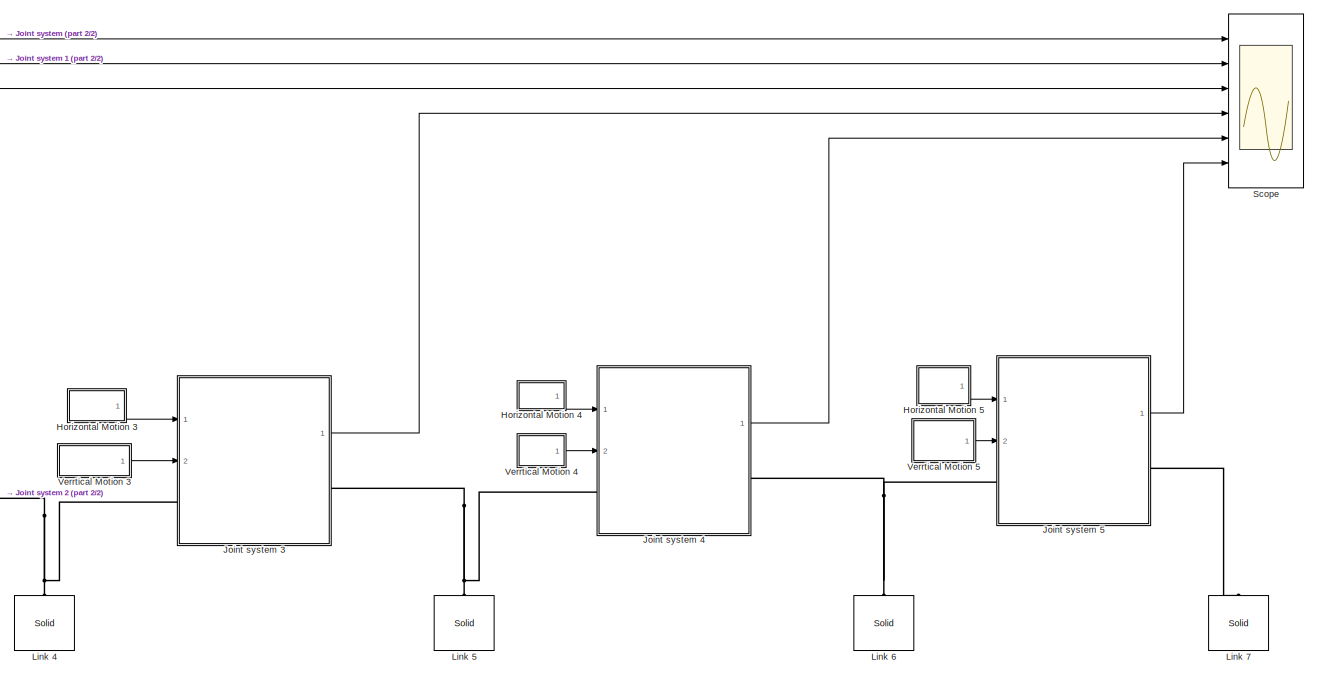
[diagram: root canvas - part 1/2, right side, full height]
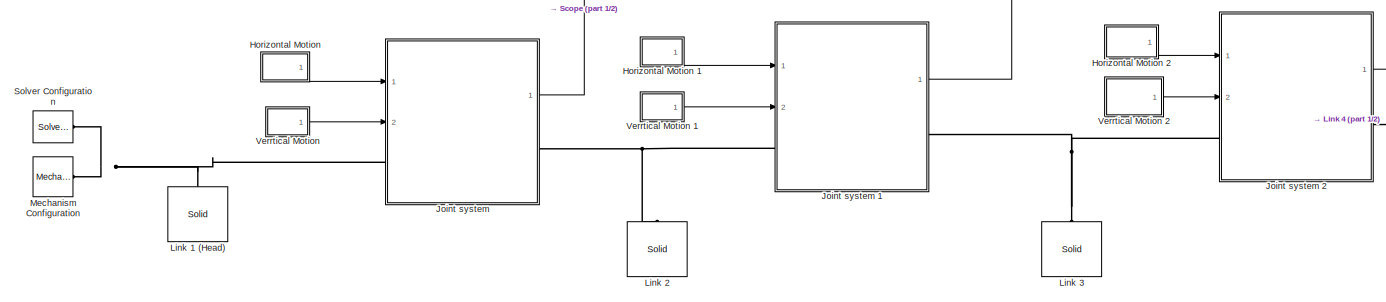
[diagram: root canvas - part 2/2, bottom left region]
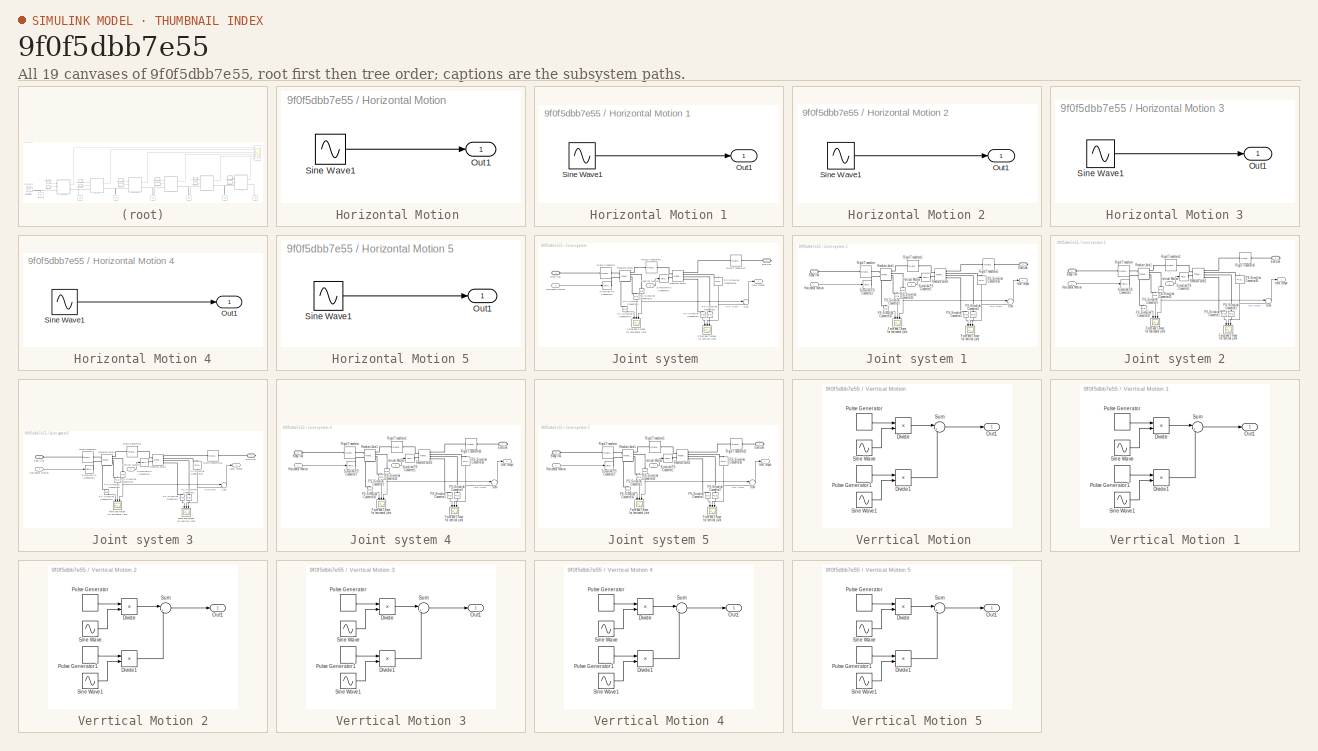
[diagram: thumbnail index - all 19 canvases of the model, root first then tree order]
MODEL slx_9f0f5dbb7e55
KIND model
CONFIG AbsTol = auto
CONFIG EnableMultiTasking = on
CONFIG FixedStep = auto
CONFIG MaxStep = auto
CONFIG MinStep = auto
CONFIG PreLoadFcn = robotParameters;
CONFIG RelTol = 1e-3
CONFIG SampleTimeConstraint = Unconstrained
CONFIG Solver = VariableStepAuto
CONFIG SolverName = VariableStepAuto
CONFIG StartTime = 0.0
CONFIG StopTime = 20
BLOCK [SubSystem] Horizontal Motion 
  Ports = [0, 1]
  RequestExecContextInheritance = off
BLOCK [Outport] Horizontal Motion /Out1
  IconDisplay = Port number
BLOCK [Sin] Horizontal Motion /Sine Wave1
  Amplitude = 15
  Frequency = 5
  Phase = 90
  Ports = [0, 1]
BLOCK [SubSystem] Horizontal Motion 1
  Ports = [0, 1]
  RequestExecContextInheritance = off
BLOCK [Outport] Horizontal Motion 1/Out1
  IconDisplay = Port number
BLOCK [Sin] Horizontal Motion 1/Sine Wave1
  Amplitude = 15
  Frequency = 5
  Phase = 90 * 2
  Ports = [0, 1]
  SampleTime = 0
BLOCK [SubSystem] Horizontal Motion 2
  Ports = [0, 1]
  RequestExecContextInheritance = off
BLOCK [Outport] Horizontal Motion 2/Out1
  IconDisplay = Port number
BLOCK [Sin] Horizontal Motion 2/Sine Wave1
  Amplitude = 15
  Frequency = 5
  Phase = 90 * 3
  Ports = [0, 1]
  SampleTime = 0
BLOCK [SubSystem] Horizontal Motion 3
  Ports = [0, 1]
  RequestExecContextInheritance = off
BLOCK [Outport] Horizontal Motion 3/Out1
  IconDisplay = Port number
BLOCK [Sin] Horizontal Motion 3/Sine Wave1
  Amplitude = 15
  Frequency = 5
  Phase = 90 * 3
  Ports = [0, 1]
  SampleTime = 0
BLOCK [SubSystem] Horizontal Motion 4
  Ports = [0, 1]
  RequestExecContextInheritance = off
BLOCK [Outport] Horizontal Motion 4/Out1
  IconDisplay = Port number
BLOCK [Sin] Horizontal Motion 4/Sine Wave1
  Amplitude = 15
  Frequency = 5
  Phase = 90 * 4
  Ports = [0, 1]
  SampleTime = 0
BLOCK [SubSystem] Horizontal Motion 5
  Ports = [0, 1]
  RequestExecContextInheritance = off
BLOCK [Outport] Horizontal Motion 5/Out1
  IconDisplay = Port number
BLOCK [Sin] Horizontal Motion 5/Sine Wave1
  Amplitude = 15
  Frequency = 5
  Phase = 90 * 5
  Ports = [0, 1]
  SampleTime = 0
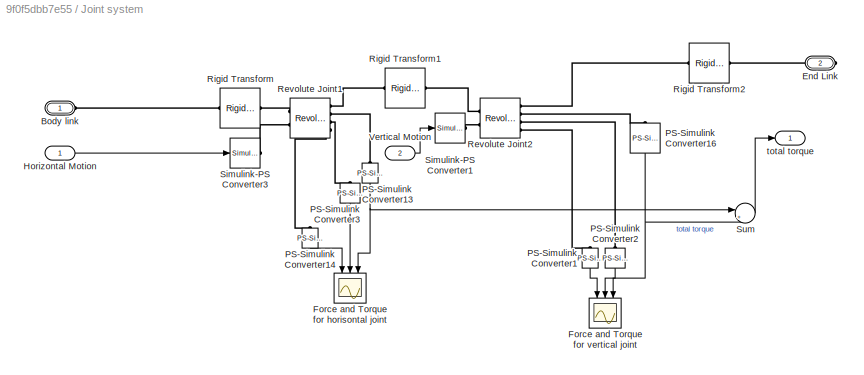
BLOCK [SubSystem] Joint system 
  Ports = [2, 1, 0, 0, 0, 1, 1]
  RequestExecContextInheritance = off
BLOCK [PMIOPort] Joint system /Body link
  Side = Left
BLOCK [PMIOPort] Joint system /End Link 
  Port = 2
  Side = Right
BLOCK [Scope] Joint system /Force and Torque for horisontal joint
  Floating = off
  NumInputPorts = 3
  Ports = [3]
  ScopeSpecificationString = Simulink.scopes.TimeScopeBlockCfg('CurrentConfiguration', extmgr.ConfigurationSet(extmgr.Configuration('Core','General UI',true),extmgr.Configuration('Core','Source UI',true),extmgr.Configuration('Sources','WiredSimulink',true,'DataLoggingLimitDataPoints',true,'DataLoggingSaveFormat','Array','DataLoggingDecimation','1','DataLoggingDecimateData',true,'DataLoggingVariableName','ScopeData1'),extmgr.C...<+3206ch>  <repeated x12 — deduplicated; at blocks: Force and Torque for horisontal joint, Force and Torque for vertical joint>
BLOCK [Scope] Joint system /Force and Torque for vertical joint
  Floating = off
  NumInputPorts = 3
  Ports = [3]
BLOCK [Inport] Joint system /Horizontal Motion
  IconDisplay = Port number
BLOCK [Reference] Joint system /PS-Simulink Converter1  REF=nesl_utility/PS-Simulink
Converter
  Ports = [0, 1, 0, 0, 0, 1]
  SourceBlock = nesl_utility/PS-Simulink\nConverter
  SourceProductBaseCode = SS
  SourceProductName = Simscape
  SourceType = PS-Simulink\nConverter
BLOCK [Reference] Joint system /PS-Simulink Converter13  REF=nesl_utility/PS-Simulink
Converter
  Ports = [0, 1, 0, 0, 0, 1]
  SourceBlock = nesl_utility/PS-Simulink\nConverter
  SourceProductBaseCode = SS
  SourceProductName = Simscape
  SourceType = PS-Simulink\nConverter
BLOCK [Reference] Joint system /PS-Simulink Converter14  REF=nesl_utility/PS-Simulink
Converter
  Ports = [0, 1, 0, 0, 0, 1]
  SourceBlock = nesl_utility/PS-Simulink\nConverter
  SourceProductBaseCode = SS
  SourceProductName = Simscape
  SourceType = PS-Simulink\nConverter
BLOCK [Reference] Joint system /PS-Simulink Converter16  REF=nesl_utility/PS-Simulink
Converter
  Ports = [0, 1, 0, 0, 0, 1]
  SourceBlock = nesl_utility/PS-Simulink\nConverter
  SourceProductBaseCode = SS
  SourceProductName = Simscape
  SourceType = PS-Simulink\nConverter
BLOCK [Reference] Joint system /PS-Simulink Converter2  REF=nesl_utility/PS-Simulink
Converter
  Ports = [0, 1, 0, 0, 0, 1]
  SourceBlock = nesl_utility/PS-Simulink\nConverter
  SourceProductBaseCode = SS
  SourceProductName = Simscape
  SourceType = PS-Simulink\nConverter
BLOCK [Reference] Joint system /PS-Simulink Converter3  REF=nesl_utility/PS-Simulink
Converter
  Ports = [0, 1, 0, 0, 0, 1]
  SourceBlock = nesl_utility/PS-Simulink\nConverter
  SourceProductBaseCode = SS
  SourceProductName = Simscape
  SourceType = PS-Simulink\nConverter
BLOCK [Reference] Joint system /Revolute Joint1  REF=sm_lib/Joints/Revolute Joint
  Ports = [0, 0, 0, 0, 0, 2, 4]
  SourceBlock = sm_lib/Joints/Revolute Joint
  SourceProductBaseCode = MS
  SourceProductName = Simscape Multibody
  SourceType = Revolute Joint
BLOCK [Reference] Joint system /Revolute Joint2  REF=sm_lib/Joints/Revolute Joint
  Ports = [0, 0, 0, 0, 0, 2, 4]
  SourceBlock = sm_lib/Joints/Revolute Joint
  SourceProductBaseCode = MS
  SourceProductName = Simscape Multibody
  SourceType = Revolute Joint
BLOCK [Reference] Joint system /Rigid Transform  REF=sm_lib/Frames and
Transforms/Rigid
Transform
  Ports = [0, 0, 0, 0, 0, 1, 1]
  SourceBlock = sm_lib/Frames and\nTransforms/Rigid\nTransform
  SourceProductBaseCode = MS
  SourceProductName = Simscape Multibody
  SourceType = Rigid\nTransform
BLOCK [Reference] Joint system /Rigid Transform1  REF=sm_lib/Frames and
Transforms/Rigid
Transform
  Ports = [0, 0, 0, 0, 0, 1, 1]
  SourceBlock = sm_lib/Frames and\nTransforms/Rigid\nTransform
  SourceProductBaseCode = MS
  SourceProductName = Simscape Multibody
  SourceType = Rigid\nTransform
BLOCK [Reference] Joint system /Rigid Transform2  REF=sm_lib/Frames and
Transforms/Rigid
Transform
  Ports = [0, 0, 0, 0, 0, 1, 1]
  SourceBlock = sm_lib/Frames and\nTransforms/Rigid\nTransform
  SourceProductBaseCode = MS
  SourceProductName = Simscape Multibody
  SourceType = Rigid\nTransform
BLOCK [Reference] Joint system /Simulink-PS Converter1  REF=nesl_utility/Simulink-PS
Converter
  Ports = [1, 0, 0, 0, 0, 0, 1]
  SourceBlock = nesl_utility/Simulink-PS\nConverter
  SourceProductBaseCode = SS
  SourceProductName = Simscape
  SourceType = Simulink-PS\nConverter
BLOCK [Reference] Joint system /Simulink-PS Converter3  REF=nesl_utility/Simulink-PS
Converter
  Ports = [1, 0, 0, 0, 0, 0, 1]
  SourceBlock = nesl_utility/Simulink-PS\nConverter
  SourceProductBaseCode = SS
  SourceProductName = Simscape
  SourceType = Simulink-PS\nConverter
BLOCK [Sum] Joint system /Sum
  IconShape = round
  InputSameDT = off
  Inputs = |++
  OutDataTypeStr = Inherit: Inherit via internal rule
  Ports = [2, 1]
  SaturateOnIntegerOverflow = off
BLOCK [Inport] Joint system /Vertical Motion
  IconDisplay = Port number
  Port = 2
BLOCK [Outport] Joint system /total torque
  IconDisplay = Port number
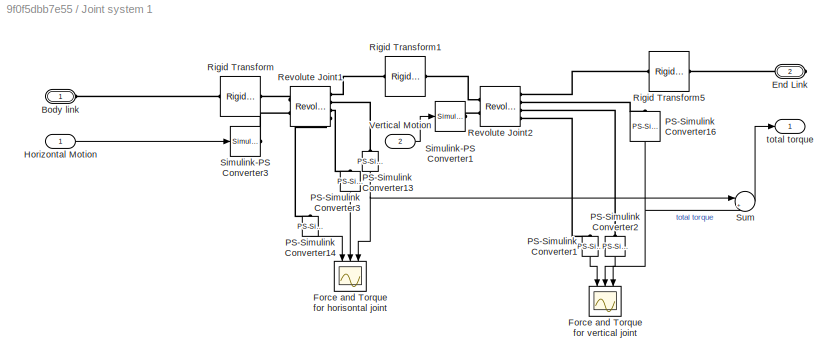
BLOCK [SubSystem] Joint system 1
  Ports = [2, 1, 0, 0, 0, 1, 1]
  RequestExecContextInheritance = off
BLOCK [PMIOPort] Joint system 1/Body link
  Side = Left
BLOCK [PMIOPort] Joint system 1/End Link 
  Port = 2
  Side = Right
BLOCK [Scope] Joint system 1/Force and Torque for horisontal joint
  Floating = off
  NumInputPorts = 3
  Ports = [3]
BLOCK [Scope] Joint system 1/Force and Torque for vertical joint
  Floating = off
  NumInputPorts = 3
  Ports = [3]
BLOCK [Inport] Joint system 1/Horizontal Motion
  IconDisplay = Port number
BLOCK [Reference] Joint system 1/PS-Simulink Converter1  REF=nesl_utility/PS-Simulink
Converter
  Ports = [0, 1, 0, 0, 0, 1]
  SourceBlock = nesl_utility/PS-Simulink\nConverter
  SourceProductBaseCode = SS
  SourceProductName = Simscape
  SourceType = PS-Simulink\nConverter
BLOCK [Reference] Joint system 1/PS-Simulink Converter13  REF=nesl_utility/PS-Simulink
Converter
  Ports = [0, 1, 0, 0, 0, 1]
  SourceBlock = nesl_utility/PS-Simulink\nConverter
  SourceProductBaseCode = SS
  SourceProductName = Simscape
  SourceType = PS-Simulink\nConverter
BLOCK [Reference] Joint system 1/PS-Simulink Converter14  REF=nesl_utility/PS-Simulink
Converter
  Ports = [0, 1, 0, 0, 0, 1]
  SourceBlock = nesl_utility/PS-Simulink\nConverter
  SourceProductBaseCode = SS
  SourceProductName = Simscape
  SourceType = PS-Simulink\nConverter
BLOCK [Reference] Joint system 1/PS-Simulink Converter16  REF=nesl_utility/PS-Simulink
Converter
  Ports = [0, 1, 0, 0, 0, 1]
  SourceBlock = nesl_utility/PS-Simulink\nConverter
  SourceProductBaseCode = SS
  SourceProductName = Simscape
  SourceType = PS-Simulink\nConverter
BLOCK [Reference] Joint system 1/PS-Simulink Converter2  REF=nesl_utility/PS-Simulink
Converter
  Ports = [0, 1, 0, 0, 0, 1]
  SourceBlock = nesl_utility/PS-Simulink\nConverter
  SourceProductBaseCode = SS
  SourceProductName = Simscape
  SourceType = PS-Simulink\nConverter
BLOCK [Reference] Joint system 1/PS-Simulink Converter3  REF=nesl_utility/PS-Simulink
Converter
  Ports = [0, 1, 0, 0, 0, 1]
  SourceBlock = nesl_utility/PS-Simulink\nConverter
  SourceProductBaseCode = SS
  SourceProductName = Simscape
  SourceType = PS-Simulink\nConverter
BLOCK [Reference] Joint system 1/Revolute Joint1  REF=sm_lib/Joints/Revolute Joint
  Ports = [0, 0, 0, 0, 0, 2, 4]
  SourceBlock = sm_lib/Joints/Revolute Joint
  SourceProductBaseCode = MS
  SourceProductName = Simscape Multibody
  SourceType = Revolute Joint
BLOCK [Reference] Joint system 1/Revolute Joint2  REF=sm_lib/Joints/Revolute Joint
  Ports = [0, 0, 0, 0, 0, 2, 4]
  SourceBlock = sm_lib/Joints/Revolute Joint
  SourceProductBaseCode = MS
  SourceProductName = Simscape Multibody
  SourceType = Revolute Joint
BLOCK [Reference] Joint system 1/Rigid Transform  REF=sm_lib/Frames and
Transforms/Rigid
Transform
  Ports = [0, 0, 0, 0, 0, 1, 1]
  SourceBlock = sm_lib/Frames and\nTransforms/Rigid\nTransform
  SourceProductBaseCode = MS
  SourceProductName = Simscape Multibody
  SourceType = Rigid\nTransform
BLOCK [Reference] Joint system 1/Rigid Transform1  REF=sm_lib/Frames and
Transforms/Rigid
Transform
  Ports = [0, 0, 0, 0, 0, 1, 1]
  SourceBlock = sm_lib/Frames and\nTransforms/Rigid\nTransform
  SourceProductBaseCode = MS
  SourceProductName = Simscape Multibody
  SourceType = Rigid\nTransform
BLOCK [Reference] Joint system 1/Rigid Transform5  REF=sm_lib/Frames and
Transforms/Rigid
Transform
  Ports = [0, 0, 0, 0, 0, 1, 1]
  SourceBlock = sm_lib/Frames and\nTransforms/Rigid\nTransform
  SourceProductBaseCode = MS
  SourceProductName = Simscape Multibody
  SourceType = Rigid\nTransform
BLOCK [Reference] Joint system 1/Simulink-PS Converter1  REF=nesl_utility/Simulink-PS
Converter
  Ports = [1, 0, 0, 0, 0, 0, 1]
  SourceBlock = nesl_utility/Simulink-PS\nConverter
  SourceProductBaseCode = SS
  SourceProductName = Simscape
  SourceType = Simulink-PS\nConverter
BLOCK [Reference] Joint system 1/Simulink-PS Converter3  REF=nesl_utility/Simulink-PS
Converter
  Ports = [1, 0, 0, 0, 0, 0, 1]
  SourceBlock = nesl_utility/Simulink-PS\nConverter
  SourceProductBaseCode = SS
  SourceProductName = Simscape
  SourceType = Simulink-PS\nConverter
BLOCK [Sum] Joint system 1/Sum
  IconShape = round
  InputSameDT = off
  Inputs = |++
  OutDataTypeStr = Inherit: Inherit via internal rule
  Ports = [2, 1]
  SaturateOnIntegerOverflow = off
BLOCK [Inport] Joint system 1/Vertical Motion
  IconDisplay = Port number
  Port = 2
BLOCK [Outport] Joint system 1/total torque
  IconDisplay = Port number
BLOCK [SubSystem] Joint system 2
  Ports = [2, 1, 0, 0, 0, 1, 1]
  RequestExecContextInheritance = off
BLOCK [PMIOPort] Joint system 2/Body link
  Side = Left
BLOCK [PMIOPort] Joint system 2/End Link 
  Port = 2
  Side = Right
BLOCK [Scope] Joint system 2/Force and Torque for horisontal joint
  Floating = off
  NumInputPorts = 3
  Ports = [3]
BLOCK [Scope] Joint system 2/Force and Torque for vertical joint
  Floating = off
  NumInputPorts = 3
  Ports = [3]
BLOCK [Inport] Joint system 2/Horizontal Motion
  IconDisplay = Port number
BLOCK [Reference] Joint system 2/PS-Simulink Converter1  REF=nesl_utility/PS-Simulink
Converter
  Ports = [0, 1, 0, 0, 0, 1]
  SourceBlock = nesl_utility/PS-Simulink\nConverter
  SourceProductBaseCode = SS
  SourceProductName = Simscape
  SourceType = PS-Simulink\nConverter
BLOCK [Reference] Joint system 2/PS-Simulink Converter13  REF=nesl_utility/PS-Simulink
Converter
  Ports = [0, 1, 0, 0, 0, 1]
  SourceBlock = nesl_utility/PS-Simulink\nConverter
  SourceProductBaseCode = SS
  SourceProductName = Simscape
  SourceType = PS-Simulink\nConverter
BLOCK [Reference] Joint system 2/PS-Simulink Converter14  REF=nesl_utility/PS-Simulink
Converter
  Ports = [0, 1, 0, 0, 0, 1]
  SourceBlock = nesl_utility/PS-Simulink\nConverter
  SourceProductBaseCode = SS
  SourceProductName = Simscape
  SourceType = PS-Simulink\nConverter
BLOCK [Reference] Joint system 2/PS-Simulink Converter16  REF=nesl_utility/PS-Simulink
Converter
  Ports = [0, 1, 0, 0, 0, 1]
  SourceBlock = nesl_utility/PS-Simulink\nConverter
  SourceProductBaseCode = SS
  SourceProductName = Simscape
  SourceType = PS-Simulink\nConverter
BLOCK [Reference] Joint system 2/PS-Simulink Converter2  REF=nesl_utility/PS-Simulink
Converter
  Ports = [0, 1, 0, 0, 0, 1]
  SourceBlock = nesl_utility/PS-Simulink\nConverter
  SourceProductBaseCode = SS
  SourceProductName = Simscape
  SourceType = PS-Simulink\nConverter
BLOCK [Reference] Joint system 2/PS-Simulink Converter3  REF=nesl_utility/PS-Simulink
Converter
  Ports = [0, 1, 0, 0, 0, 1]
  SourceBlock = nesl_utility/PS-Simulink\nConverter
  SourceProductBaseCode = SS
  SourceProductName = Simscape
  SourceType = PS-Simulink\nConverter
BLOCK [Reference] Joint system 2/Revolute Joint1  REF=sm_lib/Joints/Revolute Joint
  Ports = [0, 0, 0, 0, 0, 2, 4]
  SourceBlock = sm_lib/Joints/Revolute Joint
  SourceProductBaseCode = MS
  SourceProductName = Simscape Multibody
  SourceType = Revolute Joint
BLOCK [Reference] Joint system 2/Revolute Joint2  REF=sm_lib/Joints/Revolute Joint
  Ports = [0, 0, 0, 0, 0, 2, 4]
  SourceBlock = sm_lib/Joints/Revolute Joint
  SourceProductBaseCode = MS
  SourceProductName = Simscape Multibody
  SourceType = Revolute Joint
BLOCK [Reference] Joint system 2/Rigid Transform  REF=sm_lib/Frames and
Transforms/Rigid
Transform
  Ports = [0, 0, 0, 0, 0, 1, 1]
  SourceBlock = sm_lib/Frames and\nTransforms/Rigid\nTransform
  SourceProductBaseCode = MS
  SourceProductName = Simscape Multibody
  SourceType = Rigid\nTransform
BLOCK [Reference] Joint system 2/Rigid Transform1  REF=sm_lib/Frames and
Transforms/Rigid
Transform
  Ports = [0, 0, 0, 0, 0, 1, 1]
  SourceBlock = sm_lib/Frames and\nTransforms/Rigid\nTransform
  SourceProductBaseCode = MS
  SourceProductName = Simscape Multibody
  SourceType = Rigid\nTransform
BLOCK [Reference] Joint system 2/Rigid Transform8  REF=sm_lib/Frames and
Transforms/Rigid
Transform
  Ports = [0, 0, 0, 0, 0, 1, 1]
  SourceBlock = sm_lib/Frames and\nTransforms/Rigid\nTransform
  SourceProductBaseCode = MS
  SourceProductName = Simscape Multibody
  SourceType = Rigid\nTransform
BLOCK [Reference] Joint system 2/Simulink-PS Converter1  REF=nesl_utility/Simulink-PS
Converter
  Ports = [1, 0, 0, 0, 0, 0, 1]
  SourceBlock = nesl_utility/Simulink-PS\nConverter
  SourceProductBaseCode = SS
  SourceProductName = Simscape
  SourceType = Simulink-PS\nConverter
BLOCK [Reference] Joint system 2/Simulink-PS Converter3  REF=nesl_utility/Simulink-PS
Converter
  Ports = [1, 0, 0, 0, 0, 0, 1]
  SourceBlock = nesl_utility/Simulink-PS\nConverter
  SourceProductBaseCode = SS
  SourceProductName = Simscape
  SourceType = Simulink-PS\nConverter
BLOCK [Sum] Joint system 2/Sum
  IconShape = round
  InputSameDT = off
  Inputs = |++
  OutDataTypeStr = Inherit: Inherit via internal rule
  Ports = [2, 1]
  SaturateOnIntegerOverflow = off
BLOCK [Inport] Joint system 2/Vertical Motion
  IconDisplay = Port number
  Port = 2
BLOCK [Outport] Joint system 2/total torque
  IconDisplay = Port number
BLOCK [SubSystem] Joint system 3
  Ports = [2, 1, 0, 0, 0, 1, 1]
  RequestExecContextInheritance = off
BLOCK [PMIOPort] Joint system 3/Body link
  Side = Left
BLOCK [PMIOPort] Joint system 3/End Link 
  Port = 2
  Side = Right
BLOCK [Scope] Joint system 3/Force and Torque for horisontal joint
  Floating = off
  NumInputPorts = 3
  Ports = [3]
BLOCK [Scope] Joint system 3/Force and Torque for vertical joint
  Floating = off
  NumInputPorts = 3
  Ports = [3]
BLOCK [Inport] Joint system 3/Horizontal Motion
  IconDisplay = Port number
BLOCK [Reference] Joint system 3/PS-Simulink Converter1  REF=nesl_utility/PS-Simulink
Converter
  Ports = [0, 1, 0, 0, 0, 1]
  SourceBlock = nesl_utility/PS-Simulink\nConverter
  SourceProductBaseCode = SS
  SourceProductName = Simscape
  SourceType = PS-Simulink\nConverter
BLOCK [Reference] Joint system 3/PS-Simulink Converter13  REF=nesl_utility/PS-Simulink
Converter
  Ports = [0, 1, 0, 0, 0, 1]
  SourceBlock = nesl_utility/PS-Simulink\nConverter
  SourceProductBaseCode = SS
  SourceProductName = Simscape
  SourceType = PS-Simulink\nConverter
BLOCK [Reference] Joint system 3/PS-Simulink Converter14  REF=nesl_utility/PS-Simulink
Converter
  Ports = [0, 1, 0, 0, 0, 1]
  SourceBlock = nesl_utility/PS-Simulink\nConverter
  SourceProductBaseCode = SS
  SourceProductName = Simscape
  SourceType = PS-Simulink\nConverter
BLOCK [Reference] Joint system 3/PS-Simulink Converter16  REF=nesl_utility/PS-Simulink
Converter
  Ports = [0, 1, 0, 0, 0, 1]
  SourceBlock = nesl_utility/PS-Simulink\nConverter
  SourceProductBaseCode = SS
  SourceProductName = Simscape
  SourceType = PS-Simulink\nConverter
BLOCK [Reference] Joint system 3/PS-Simulink Converter2  REF=nesl_utility/PS-Simulink
Converter
  Ports = [0, 1, 0, 0, 0, 1]
  SourceBlock = nesl_utility/PS-Simulink\nConverter
  SourceProductBaseCode = SS
  SourceProductName = Simscape
  SourceType = PS-Simulink\nConverter
BLOCK [Reference] Joint system 3/PS-Simulink Converter3  REF=nesl_utility/PS-Simulink
Converter
  Ports = [0, 1, 0, 0, 0, 1]
  SourceBlock = nesl_utility/PS-Simulink\nConverter
  SourceProductBaseCode = SS
  SourceProductName = Simscape
  SourceType = PS-Simulink\nConverter
BLOCK [Reference] Joint system 3/Revolute Joint1  REF=sm_lib/Joints/Revolute Joint
  Ports = [0, 0, 0, 0, 0, 2, 4]
  SourceBlock = sm_lib/Joints/Revolute Joint
  SourceProductBaseCode = MS
  SourceProductName = Simscape Multibody
  SourceType = Revolute Joint
BLOCK [Reference] Joint system 3/Revolute Joint2  REF=sm_lib/Joints/Revolute Joint
  Ports = [0, 0, 0, 0, 0, 2, 4]
  SourceBlock = sm_lib/Joints/Revolute Joint
  SourceProductBaseCode = MS
  SourceProductName = Simscape Multibody
  SourceType = Revolute Joint
BLOCK [Reference] Joint system 3/Rigid Transform  REF=sm_lib/Frames and
Transforms/Rigid
Transform
  Ports = [0, 0, 0, 0, 0, 1, 1]
  SourceBlock = sm_lib/Frames and\nTransforms/Rigid\nTransform
  SourceProductBaseCode = MS
  SourceProductName = Simscape Multibody
  SourceType = Rigid\nTransform
BLOCK [Reference] Joint system 3/Rigid Transform1  REF=sm_lib/Frames and
Transforms/Rigid
Transform
  Ports = [0, 0, 0, 0, 0, 1, 1]
  SourceBlock = sm_lib/Frames and\nTransforms/Rigid\nTransform
  SourceProductBaseCode = MS
  SourceProductName = Simscape Multibody
  SourceType = Rigid\nTransform
BLOCK [Reference] Joint system 3/Rigid Transform11  REF=sm_lib/Frames and
Transforms/Rigid
Transform
  Ports = [0, 0, 0, 0, 0, 1, 1]
  SourceBlock = sm_lib/Frames and\nTransforms/Rigid\nTransform
  SourceProductBaseCode = MS
  SourceProductName = Simscape Multibody
  SourceType = Rigid\nTransform
BLOCK [Reference] Joint system 3/Simulink-PS Converter1  REF=nesl_utility/Simulink-PS
Converter
  Ports = [1, 0, 0, 0, 0, 0, 1]
  SourceBlock = nesl_utility/Simulink-PS\nConverter
  SourceProductBaseCode = SS
  SourceProductName = Simscape
  SourceType = Simulink-PS\nConverter
BLOCK [Reference] Joint system 3/Simulink-PS Converter3  REF=nesl_utility/Simulink-PS
Converter
  Ports = [1, 0, 0, 0, 0, 0, 1]
  SourceBlock = nesl_utility/Simulink-PS\nConverter
  SourceProductBaseCode = SS
  SourceProductName = Simscape
  SourceType = Simulink-PS\nConverter
BLOCK [Sum] Joint system 3/Sum
  IconShape = round
  InputSameDT = off
  Inputs = |++
  OutDataTypeStr = Inherit: Inherit via internal rule
  Ports = [2, 1]
  SaturateOnIntegerOverflow = off
BLOCK [Inport] Joint system 3/Vertical Motion
  IconDisplay = Port number
  Port = 2
BLOCK [Outport] Joint system 3/total torque
  IconDisplay = Port number
BLOCK [SubSystem] Joint system 4
  Ports = [2, 1, 0, 0, 0, 1, 1]
  RequestExecContextInheritance = off
BLOCK [PMIOPort] Joint system 4/Body link
  Side = Left
BLOCK [PMIOPort] Joint system 4/End Link 
  Port = 2
  Side = Right
BLOCK [Scope] Joint system 4/Force and Torque for horisontal joint
  Floating = off
  NumInputPorts = 3
  Ports = [3]
BLOCK [Scope] Joint system 4/Force and Torque for vertical joint
  Floating = off
  NumInputPorts = 3
  Ports = [3]
BLOCK [Inport] Joint system 4/Horizontal Motion
  IconDisplay = Port number
BLOCK [Reference] Joint system 4/PS-Simulink Converter1  REF=nesl_utility/PS-Simulink
Converter
  Ports = [0, 1, 0, 0, 0, 1]
  SourceBlock = nesl_utility/PS-Simulink\nConverter
  SourceProductBaseCode = SS
  SourceProductName = Simscape
  SourceType = PS-Simulink\nConverter
BLOCK [Reference] Joint system 4/PS-Simulink Converter13  REF=nesl_utility/PS-Simulink
Converter
  Ports = [0, 1, 0, 0, 0, 1]
  SourceBlock = nesl_utility/PS-Simulink\nConverter
  SourceProductBaseCode = SS
  SourceProductName = Simscape
  SourceType = PS-Simulink\nConverter
BLOCK [Reference] Joint system 4/PS-Simulink Converter14  REF=nesl_utility/PS-Simulink
Converter
  Ports = [0, 1, 0, 0, 0, 1]
  SourceBlock = nesl_utility/PS-Simulink\nConverter
  SourceProductBaseCode = SS
  SourceProductName = Simscape
  SourceType = PS-Simulink\nConverter
BLOCK [Reference] Joint system 4/PS-Simulink Converter16  REF=nesl_utility/PS-Simulink
Converter
  Ports = [0, 1, 0, 0, 0, 1]
  SourceBlock = nesl_utility/PS-Simulink\nConverter
  SourceProductBaseCode = SS
  SourceProductName = Simscape
  SourceType = PS-Simulink\nConverter
BLOCK [Reference] Joint system 4/PS-Simulink Converter2  REF=nesl_utility/PS-Simulink
Converter
  Ports = [0, 1, 0, 0, 0, 1]
  SourceBlock = nesl_utility/PS-Simulink\nConverter
  SourceProductBaseCode = SS
  SourceProductName = Simscape
  SourceType = PS-Simulink\nConverter
BLOCK [Reference] Joint system 4/PS-Simulink Converter3  REF=nesl_utility/PS-Simulink
Converter
  Ports = [0, 1, 0, 0, 0, 1]
  SourceBlock = nesl_utility/PS-Simulink\nConverter
  SourceProductBaseCode = SS
  SourceProductName = Simscape
  SourceType = PS-Simulink\nConverter
BLOCK [Reference] Joint system 4/Revolute Joint1  REF=sm_lib/Joints/Revolute Joint
  Ports = [0, 0, 0, 0, 0, 2, 4]
  SourceBlock = sm_lib/Joints/Revolute Joint
  SourceProductBaseCode = MS
  SourceProductName = Simscape Multibody
  SourceType = Revolute Joint
BLOCK [Reference] Joint system 4/Revolute Joint2  REF=sm_lib/Joints/Revolute Joint
  Ports = [0, 0, 0, 0, 0, 2, 4]
  SourceBlock = sm_lib/Joints/Revolute Joint
  SourceProductBaseCode = MS
  SourceProductName = Simscape Multibody
  SourceType = Revolute Joint
BLOCK [Reference] Joint system 4/Rigid Transform  REF=sm_lib/Frames and
Transforms/Rigid
Transform
  Ports = [0, 0, 0, 0, 0, 1, 1]
  SourceBlock = sm_lib/Frames and\nTransforms/Rigid\nTransform
  SourceProductBaseCode = MS
  SourceProductName = Simscape Multibody
  SourceType = Rigid\nTransform
BLOCK [Reference] Joint system 4/Rigid Transform1  REF=sm_lib/Frames and
Transforms/Rigid
Transform
  Ports = [0, 0, 0, 0, 0, 1, 1]
  SourceBlock = sm_lib/Frames and\nTransforms/Rigid\nTransform
  SourceProductBaseCode = MS
  SourceProductName = Simscape Multibody
  SourceType = Rigid\nTransform
BLOCK [Reference] Joint system 4/Rigid Transform16  REF=sm_lib/Frames and
Transforms/Rigid
Transform
  Ports = [0, 0, 0, 0, 0, 1, 1]
  SourceBlock = sm_lib/Frames and\nTransforms/Rigid\nTransform
  SourceProductBaseCode = MS
  SourceProductName = Simscape Multibody
  SourceType = Rigid\nTransform
BLOCK [Reference] Joint system 4/Simulink-PS Converter1  REF=nesl_utility/Simulink-PS
Converter
  Ports = [1, 0, 0, 0, 0, 0, 1]
  SourceBlock = nesl_utility/Simulink-PS\nConverter
  SourceProductBaseCode = SS
  SourceProductName = Simscape
  SourceType = Simulink-PS\nConverter
BLOCK [Reference] Joint system 4/Simulink-PS Converter3  REF=nesl_utility/Simulink-PS
Converter
  Ports = [1, 0, 0, 0, 0, 0, 1]
  SourceBlock = nesl_utility/Simulink-PS\nConverter
  SourceProductBaseCode = SS
  SourceProductName = Simscape
  SourceType = Simulink-PS\nConverter
BLOCK [Sum] Joint system 4/Sum
  IconShape = round
  InputSameDT = off
  Inputs = |++
  OutDataTypeStr = Inherit: Inherit via internal rule
  Ports = [2, 1]
  SaturateOnIntegerOverflow = off
BLOCK [Inport] Joint system 4/Vertical Motion
  IconDisplay = Port number
  Port = 2
BLOCK [Outport] Joint system 4/total torque
  IconDisplay = Port number
BLOCK [SubSystem] Joint system 5
  Ports = [2, 1, 0, 0, 0, 1, 1]
  RequestExecContextInheritance = off
BLOCK [PMIOPort] Joint system 5/Body link
  Side = Left
BLOCK [PMIOPort] Joint system 5/End Link 
  Port = 2
  Side = Right
BLOCK [Scope] Joint system 5/Force and Torque for horisontal joint
  Floating = off
  NumInputPorts = 3
  Ports = [3]
BLOCK [Scope] Joint system 5/Force and Torque for vertical joint
  Floating = off
  NumInputPorts = 3
  Ports = [3]
BLOCK [Inport] Joint system 5/Horizontal Motion
  IconDisplay = Port number
BLOCK [Reference] Joint system 5/PS-Simulink Converter1  REF=nesl_utility/PS-Simulink
Converter
  Ports = [0, 1, 0, 0, 0, 1]
  SourceBlock = nesl_utility/PS-Simulink\nConverter
  SourceProductBaseCode = SS
  SourceProductName = Simscape
  SourceType = PS-Simulink\nConverter
BLOCK [Reference] Joint system 5/PS-Simulink Converter13  REF=nesl_utility/PS-Simulink
Converter
  Ports = [0, 1, 0, 0, 0, 1]
  SourceBlock = nesl_utility/PS-Simulink\nConverter
  SourceProductBaseCode = SS
  SourceProductName = Simscape
  SourceType = PS-Simulink\nConverter
BLOCK [Reference] Joint system 5/PS-Simulink Converter14  REF=nesl_utility/PS-Simulink
Converter
  Ports = [0, 1, 0, 0, 0, 1]
  SourceBlock = nesl_utility/PS-Simulink\nConverter
  SourceProductBaseCode = SS
  SourceProductName = Simscape
  SourceType = PS-Simulink\nConverter
BLOCK [Reference] Joint system 5/PS-Simulink Converter16  REF=nesl_utility/PS-Simulink
Converter
  Ports = [0, 1, 0, 0, 0, 1]
  SourceBlock = nesl_utility/PS-Simulink\nConverter
  SourceProductBaseCode = SS
  SourceProductName = Simscape
  SourceType = PS-Simulink\nConverter
BLOCK [Reference] Joint system 5/PS-Simulink Converter2  REF=nesl_utility/PS-Simulink
Converter
  Ports = [0, 1, 0, 0, 0, 1]
  SourceBlock = nesl_utility/PS-Simulink\nConverter
  SourceProductBaseCode = SS
  SourceProductName = Simscape
  SourceType = PS-Simulink\nConverter
BLOCK [Reference] Joint system 5/PS-Simulink Converter3  REF=nesl_utility/PS-Simulink
Converter
  Ports = [0, 1, 0, 0, 0, 1]
  SourceBlock = nesl_utility/PS-Simulink\nConverter
  SourceProductBaseCode = SS
  SourceProductName = Simscape
  SourceType = PS-Simulink\nConverter
BLOCK [Reference] Joint system 5/Revolute Joint1  REF=sm_lib/Joints/Revolute Joint
  Ports = [0, 0, 0, 0, 0, 2, 4]
  SourceBlock = sm_lib/Joints/Revolute Joint
  SourceProductBaseCode = MS
  SourceProductName = Simscape Multibody
  SourceType = Revolute Joint
BLOCK [Reference] Joint system 5/Revolute Joint2  REF=sm_lib/Joints/Revolute Joint
  Ports = [0, 0, 0, 0, 0, 2, 4]
  SourceBlock = sm_lib/Joints/Revolute Joint
  SourceProductBaseCode = MS
  SourceProductName = Simscape Multibody
  SourceType = Revolute Joint
BLOCK [Reference] Joint system 5/Rigid Transform  REF=sm_lib/Frames and
Transforms/Rigid
Transform
  Ports = [0, 0, 0, 0, 0, 1, 1]
  SourceBlock = sm_lib/Frames and\nTransforms/Rigid\nTransform
  SourceProductBaseCode = MS
  SourceProductName = Simscape Multibody
  SourceType = Rigid\nTransform
BLOCK [Reference] Joint system 5/Rigid Transform1  REF=sm_lib/Frames and
Transforms/Rigid
Transform
  Ports = [0, 0, 0, 0, 0, 1, 1]
  SourceBlock = sm_lib/Frames and\nTransforms/Rigid\nTransform
  SourceProductBaseCode = MS
  SourceProductName = Simscape Multibody
  SourceType = Rigid\nTransform
BLOCK [Reference] Joint system 5/Rigid Transform13  REF=sm_lib/Frames and
Transforms/Rigid
Transform
  Ports = [0, 0, 0, 0, 0, 1, 1]
  SourceBlock = sm_lib/Frames and\nTransforms/Rigid\nTransform
  SourceProductBaseCode = MS
  SourceProductName = Simscape Multibody
  SourceType = Rigid\nTransform
BLOCK [Reference] Joint system 5/Simulink-PS Converter1  REF=nesl_utility/Simulink-PS
Converter
  Ports = [1, 0, 0, 0, 0, 0, 1]
  SourceBlock = nesl_utility/Simulink-PS\nConverter
  SourceProductBaseCode = SS
  SourceProductName = Simscape
  SourceType = Simulink-PS\nConverter
BLOCK [Reference] Joint system 5/Simulink-PS Converter3  REF=nesl_utility/Simulink-PS
Converter
  Ports = [1, 0, 0, 0, 0, 0, 1]
  SourceBlock = nesl_utility/Simulink-PS\nConverter
  SourceProductBaseCode = SS
  SourceProductName = Simscape
  SourceType = Simulink-PS\nConverter
BLOCK [Sum] Joint system 5/Sum
  IconShape = round
  InputSameDT = off
  Inputs = |++
  OutDataTypeStr = Inherit: Inherit via internal rule
  Ports = [2, 1]
  SaturateOnIntegerOverflow = off
BLOCK [Inport] Joint system 5/Vertical Motion
  IconDisplay = Port number
  Port = 2
BLOCK [Outport] Joint system 5/total torque
  IconDisplay = Port number
BLOCK [Reference] Link 1 (Head)  REF=sm_lib/Body Elements/Solid
  Ports = [0, 0, 0, 0, 0, 0, 1]
  SourceBlock = sm_lib/Body Elements/Solid
  SourceProductBaseCode = MS
  SourceProductName = Simscape Multibody
  SourceType = Solid
BLOCK [Reference] Link 2  REF=sm_lib/Body Elements/Solid
  Ports = [0, 0, 0, 0, 0, 0, 1]
  SourceBlock = sm_lib/Body Elements/Solid
  SourceProductBaseCode = MS
  SourceProductName = Simscape Multibody
  SourceType = Solid
BLOCK [Reference] Link 3  REF=sm_lib/Body Elements/Solid
  Ports = [0, 0, 0, 0, 0, 0, 1]
  SourceBlock = sm_lib/Body Elements/Solid
  SourceProductBaseCode = MS
  SourceProductName = Simscape Multibody
  SourceType = Solid
BLOCK [Reference] Link 4  REF=sm_lib/Body Elements/Solid
  Ports = [0, 0, 0, 0, 0, 0, 1]
  SourceBlock = sm_lib/Body Elements/Solid
  SourceProductBaseCode = MS
  SourceProductName = Simscape Multibody
  SourceType = Solid
BLOCK [Reference] Link 5  REF=sm_lib/Body Elements/Solid
  Ports = [0, 0, 0, 0, 0, 0, 1]
  SourceBlock = sm_lib/Body Elements/Solid
  SourceProductBaseCode = MS
  SourceProductName = Simscape Multibody
  SourceType = Solid
BLOCK [Reference] Link 6  REF=sm_lib/Body Elements/Solid
  Ports = [0, 0, 0, 0, 0, 0, 1]
  SourceBlock = sm_lib/Body Elements/Solid
  SourceProductBaseCode = MS
  SourceProductName = Simscape Multibody
  SourceType = Solid
BLOCK [Reference] Link 7  REF=sm_lib/Body Elements/Solid
  Ports = [0, 0, 0, 0, 0, 0, 1]
  SourceBlock = sm_lib/Body Elements/Solid
  SourceProductBaseCode = MS
  SourceProductName = Simscape Multibody
  SourceType = Solid
BLOCK [Reference] Mechanism Configuration  REF=sm_lib/Utilities/Mechanism
Configuration
  Ports = [0, 0, 0, 0, 0, 0, 1]
  SourceBlock = sm_lib/Utilities/Mechanism\nConfiguration
  SourceProductBaseCode = MS
  SourceProductName = Simscape Multibody
  SourceType = Mechanism\nConfiguration
BLOCK [Scope] Scope
  Floating = off
  NumInputPorts = 6
  Ports = [6]
  ScopeSpecificationString = Simulink.scopes.TimeScopeBlockCfg('CurrentConfiguration', extmgr.ConfigurationSet(extmgr.Configuration('Core','General UI',true),extmgr.Configuration('Core','Source UI',true),extmgr.Configuration('Sources','WiredSimulink',true,'DataLoggingVariableName','ScopeData2'),extmgr.Configuration('Visuals','Time Domain',true,'SerializedDisplays',{struct('MinYLimReal','-0.88792','MaxYLimReal','0.81383','YLab...<+1457ch>
BLOCK [Reference] Solver Configuration  REF=nesl_utility/Solver
Configuration
  Ports = [0, 0, 0, 0, 0, 0, 1]
  SourceBlock = nesl_utility/Solver\nConfiguration
  SourceProductBaseCode = SS
  SourceProductName = Simscape
  SourceType = Solver\nConfiguration
BLOCK [SubSystem] Verrtical Motion 
  Ports = [0, 1]
  RequestExecContextInheritance = off
BLOCK [Product] Verrtical Motion /Divide
  InputSameDT = off
  Inputs = **
  OutDataTypeStr = Inherit: Inherit via internal rule
  Ports = [2, 1]
  RndMeth = Floor
  SaturateOnIntegerOverflow = off
BLOCK [Product] Verrtical Motion /Divide1
  InputSameDT = off
  Inputs = **
  OutDataTypeStr = Inherit: Inherit via internal rule
  Ports = [2, 1]
  RndMeth = Floor
  SaturateOnIntegerOverflow = off
BLOCK [Outport] Verrtical Motion /Out1
  IconDisplay = Port number
BLOCK [DiscretePulseGenerator] Verrtical Motion /Pulse Generator
  Ports = [0, 1]
  PulseType = Time based
  PulseWidth = 50
BLOCK [DiscretePulseGenerator] Verrtical Motion /Pulse Generator1
  PhaseDelay = 1
  Ports = [0, 1]
  PulseType = Time based
  PulseWidth = 50
BLOCK [Sin] Verrtical Motion /Sine Wave
  Amplitude = 20
  Frequency = 5
  Phase = 2.09
  Ports = [0, 1]
BLOCK [Sin] Verrtical Motion /Sine Wave1
  Amplitude = 15
  Frequency = 5
  Phase = 5 + 2.09
  Ports = [0, 1]
BLOCK [Sum] Verrtical Motion /Sum
  IconShape = round
  InputSameDT = off
  Inputs = |++
  OutDataTypeStr = Inherit: Inherit via internal rule
  Ports = [2, 1]
  SaturateOnIntegerOverflow = off
BLOCK [SubSystem] Verrtical Motion 1
  Ports = [0, 1]
  RequestExecContextInheritance = off
BLOCK [Product] Verrtical Motion 1/Divide
  InputSameDT = off
  Inputs = **
  OutDataTypeStr = Inherit: Inherit via internal rule
  Ports = [2, 1]
  RndMeth = Floor
  SaturateOnIntegerOverflow = off
BLOCK [Product] Verrtical Motion 1/Divide1
  InputSameDT = off
  Inputs = **
  OutDataTypeStr = Inherit: Inherit via internal rule
  Ports = [2, 1]
  RndMeth = Floor
  SaturateOnIntegerOverflow = off
BLOCK [Outport] Verrtical Motion 1/Out1
  IconDisplay = Port number
BLOCK [DiscretePulseGenerator] Verrtical Motion 1/Pulse Generator
  Ports = [0, 1]
  PulseType = Time based
  PulseWidth = 50
BLOCK [DiscretePulseGenerator] Verrtical Motion 1/Pulse Generator1
  PhaseDelay = 1
  Ports = [0, 1]
  PulseType = Time based
  PulseWidth = 50
BLOCK [Sin] Verrtical Motion 1/Sine Wave
  Amplitude = 20
  Frequency = 5
  Phase = 2 * 2.09
  Ports = [0, 1]
  SampleTime = 0
BLOCK [Sin] Verrtical Motion 1/Sine Wave1
  Amplitude = 15
  Frequency = 5
  Phase = 5 + 2.09
  Ports = [0, 1]
  SampleTime = 0
BLOCK [Sum] Verrtical Motion 1/Sum
  IconShape = round
  InputSameDT = off
  Inputs = |++
  OutDataTypeStr = Inherit: Inherit via internal rule
  Ports = [2, 1]
  SaturateOnIntegerOverflow = off
BLOCK [SubSystem] Verrtical Motion 2
  Ports = [0, 1]
  RequestExecContextInheritance = off
BLOCK [Product] Verrtical Motion 2/Divide
  InputSameDT = off
  Inputs = **
  OutDataTypeStr = Inherit: Inherit via internal rule
  Ports = [2, 1]
  RndMeth = Floor
  SaturateOnIntegerOverflow = off
BLOCK [Product] Verrtical Motion 2/Divide1
  InputSameDT = off
  Inputs = **
  OutDataTypeStr = Inherit: Inherit via internal rule
  Ports = [2, 1]
  RndMeth = Floor
  SaturateOnIntegerOverflow = off
BLOCK [Outport] Verrtical Motion 2/Out1
  IconDisplay = Port number
BLOCK [DiscretePulseGenerator] Verrtical Motion 2/Pulse Generator
  Ports = [0, 1]
  PulseType = Time based
  PulseWidth = 50
BLOCK [DiscretePulseGenerator] Verrtical Motion 2/Pulse Generator1
  PhaseDelay = 1
  Ports = [0, 1]
  PulseType = Time based
  PulseWidth = 50
BLOCK [Sin] Verrtical Motion 2/Sine Wave
  Amplitude = 20
  Frequency = 5
  Phase = 2.09 * 3
  Ports = [0, 1]
  SampleTime = 0
BLOCK [Sin] Verrtical Motion 2/Sine Wave1
  Amplitude = 15
  Frequency = 5
  Phase = 5 + 2.09
  Ports = [0, 1]
  SampleTime = 0
BLOCK [Sum] Verrtical Motion 2/Sum
  IconShape = round
  InputSameDT = off
  Inputs = |++
  OutDataTypeStr = Inherit: Inherit via internal rule
  Ports = [2, 1]
  SaturateOnIntegerOverflow = off
BLOCK [SubSystem] Verrtical Motion 3
  Ports = [0, 1]
  RequestExecContextInheritance = off
BLOCK [Product] Verrtical Motion 3/Divide
  InputSameDT = off
  Inputs = **
  OutDataTypeStr = Inherit: Inherit via internal rule
  Ports = [2, 1]
  RndMeth = Floor
  SaturateOnIntegerOverflow = off
BLOCK [Product] Verrtical Motion 3/Divide1
  InputSameDT = off
  Inputs = **
  OutDataTypeStr = Inherit: Inherit via internal rule
  Ports = [2, 1]
  RndMeth = Floor
  SaturateOnIntegerOverflow = off
BLOCK [Outport] Verrtical Motion 3/Out1
  IconDisplay = Port number
BLOCK [DiscretePulseGenerator] Verrtical Motion 3/Pulse Generator
  Ports = [0, 1]
  PulseType = Time based
  PulseWidth = 50
BLOCK [DiscretePulseGenerator] Verrtical Motion 3/Pulse Generator1
  PhaseDelay = 1
  Ports = [0, 1]
  PulseType = Time based
  PulseWidth = 50
BLOCK [Sin] Verrtical Motion 3/Sine Wave
  Amplitude = 20
  Frequency = 5
  Phase = 2.09 * 4
  Ports = [0, 1]
  SampleTime = 0
BLOCK [Sin] Verrtical Motion 3/Sine Wave1
  Amplitude = 15
  Frequency = 5
  Phase = 5 + 2.09
  Ports = [0, 1]
  SampleTime = 0
BLOCK [Sum] Verrtical Motion 3/Sum
  IconShape = round
  InputSameDT = off
  Inputs = |++
  OutDataTypeStr = Inherit: Inherit via internal rule
  Ports = [2, 1]
  SaturateOnIntegerOverflow = off
BLOCK [SubSystem] Verrtical Motion 4
  Ports = [0, 1]
  RequestExecContextInheritance = off
BLOCK [Product] Verrtical Motion 4/Divide
  InputSameDT = off
  Inputs = **
  OutDataTypeStr = Inherit: Inherit via internal rule
  Ports = [2, 1]
  RndMeth = Floor
  SaturateOnIntegerOverflow = off
BLOCK [Product] Verrtical Motion 4/Divide1
  InputSameDT = off
  Inputs = **
  OutDataTypeStr = Inherit: Inherit via internal rule
  Ports = [2, 1]
  RndMeth = Floor
  SaturateOnIntegerOverflow = off
BLOCK [Outport] Verrtical Motion 4/Out1
  IconDisplay = Port number
BLOCK [DiscretePulseGenerator] Verrtical Motion 4/Pulse Generator
  Ports = [0, 1]
  PulseType = Time based
  PulseWidth = 50
BLOCK [DiscretePulseGenerator] Verrtical Motion 4/Pulse Generator1
  PhaseDelay = 1
  Ports = [0, 1]
  PulseType = Time based
  PulseWidth = 50
BLOCK [Sin] Verrtical Motion 4/Sine Wave
  Amplitude = 20
  Frequency = 5
  Phase = 2.09 * 5
  Ports = [0, 1]
  SampleTime = 0
BLOCK [Sin] Verrtical Motion 4/Sine Wave1
  Amplitude = 15
  Frequency = 5
  Phase = 5 + 2.09
  Ports = [0, 1]
  SampleTime = 0
BLOCK [Sum] Verrtical Motion 4/Sum
  IconShape = round
  InputSameDT = off
  Inputs = |++
  OutDataTypeStr = Inherit: Inherit via internal rule
  Ports = [2, 1]
  SaturateOnIntegerOverflow = off
BLOCK [SubSystem] Verrtical Motion 5
  Ports = [0, 1]
  RequestExecContextInheritance = off
BLOCK [Product] Verrtical Motion 5/Divide
  InputSameDT = off
  Inputs = **
  OutDataTypeStr = Inherit: Inherit via internal rule
  Ports = [2, 1]
  RndMeth = Floor
  SaturateOnIntegerOverflow = off
BLOCK [Product] Verrtical Motion 5/Divide1
  InputSameDT = off
  Inputs = **
  OutDataTypeStr = Inherit: Inherit via internal rule
  Ports = [2, 1]
  RndMeth = Floor
  SaturateOnIntegerOverflow = off
BLOCK [Outport] Verrtical Motion 5/Out1
  IconDisplay = Port number
BLOCK [DiscretePulseGenerator] Verrtical Motion 5/Pulse Generator
  Ports = [0, 1]
  PulseType = Time based
  PulseWidth = 50
BLOCK [DiscretePulseGenerator] Verrtical Motion 5/Pulse Generator1
  PhaseDelay = 1
  Ports = [0, 1]
  PulseType = Time based
  PulseWidth = 50
BLOCK [Sin] Verrtical Motion 5/Sine Wave
  Amplitude = 20
  Frequency = 5
  Phase = 2.09 * 6
  Ports = [0, 1]
  SampleTime = 0
BLOCK [Sin] Verrtical Motion 5/Sine Wave1
  Amplitude = 15
  Frequency = 5
  Phase = 5 + 2.09
  Ports = [0, 1]
  SampleTime = 0
BLOCK [Sum] Verrtical Motion 5/Sum
  IconShape = round
  InputSameDT = off
  Inputs = |++
  OutDataTypeStr = Inherit: Inherit via internal rule
  Ports = [2, 1]
  SaturateOnIntegerOverflow = off
LINE Horizontal Motion /Sine Wave1:1 -> Horizontal Motion /Out1:1
LINE Horizontal Motion 1/Sine Wave1:1 -> Horizontal Motion 1/Out1:1
LINE Horizontal Motion 1:1 -> Joint system 1:1
LINE Horizontal Motion 2/Sine Wave1:1 -> Horizontal Motion 2/Out1:1
LINE Horizontal Motion 2:1 -> Joint system 2:1
LINE Horizontal Motion 3/Sine Wave1:1 -> Horizontal Motion 3/Out1:1
LINE Horizontal Motion 3:1 -> Joint system 3:1
LINE Horizontal Motion 4/Sine Wave1:1 -> Horizontal Motion 4/Out1:1
LINE Horizontal Motion 4:1 -> Joint system 4:1
LINE Horizontal Motion 5/Sine Wave1:1 -> Horizontal Motion 5/Out1:1
LINE Horizontal Motion 5:1 -> Joint system 5:1
LINE Horizontal Motion :1 -> Joint system :1
LINE Joint system /Horizontal Motion:1 -> Joint system /Simulink-PS Converter3:1
NET Joint system /PS-Simulink Converter13:1 -> Joint system /Force and Torque for horisontal joint:3, Joint system /Sum:1
LINE Joint system /PS-Simulink Converter14:1 -> Joint system /Force and Torque for horisontal joint:1
NET Joint system /PS-Simulink Converter16:1 -> Joint system /Force and Torque for vertical joint:3, Joint system /Sum:2
LINE Joint system /PS-Simulink Converter1:1 -> Joint system /Force and Torque for vertical joint:1
LINE Joint system /PS-Simulink Converter2:1 -> Joint system /Force and Torque for vertical joint:2
LINE Joint system /PS-Simulink Converter3:1 -> Joint system /Force and Torque for horisontal joint:2
LINE Joint system /Sum:1 -> Joint system /total torque:1
LINE Joint system /Vertical Motion:1 -> Joint system /Simulink-PS Converter1:1
LINE Joint system 1/Horizontal Motion:1 -> Joint system 1/Simulink-PS Converter3:1
NET Joint system 1/PS-Simulink Converter13:1 -> Joint system 1/Force and Torque for horisontal joint:3, Joint system 1/Sum:1
LINE Joint system 1/PS-Simulink Converter14:1 -> Joint system 1/Force and Torque for horisontal joint:1
NET Joint system 1/PS-Simulink Converter16:1 -> Joint system 1/Force and Torque for vertical joint:3, Joint system 1/Sum:2
LINE Joint system 1/PS-Simulink Converter1:1 -> Joint system 1/Force and Torque for vertical joint:1
LINE Joint system 1/PS-Simulink Converter2:1 -> Joint system 1/Force and Torque for vertical joint:2
LINE Joint system 1/PS-Simulink Converter3:1 -> Joint system 1/Force and Torque for horisontal joint:2
LINE Joint system 1/Sum:1 -> Joint system 1/total torque:1
LINE Joint system 1/Vertical Motion:1 -> Joint system 1/Simulink-PS Converter1:1
LINE Joint system 1:1 -> Scope:2
LINE Joint system 2/Horizontal Motion:1 -> Joint system 2/Simulink-PS Converter3:1
NET Joint system 2/PS-Simulink Converter13:1 -> Joint system 2/Force and Torque for horisontal joint:3, Joint system 2/Sum:1
LINE Joint system 2/PS-Simulink Converter14:1 -> Joint system 2/Force and Torque for horisontal joint:1
NET Joint system 2/PS-Simulink Converter16:1 -> Joint system 2/Force and Torque for vertical joint:3, Joint system 2/Sum:2
LINE Joint system 2/PS-Simulink Converter1:1 -> Joint system 2/Force and Torque for vertical joint:1
LINE Joint system 2/PS-Simulink Converter2:1 -> Joint system 2/Force and Torque for vertical joint:2
LINE Joint system 2/PS-Simulink Converter3:1 -> Joint system 2/Force and Torque for horisontal joint:2
LINE Joint system 2/Sum:1 -> Joint system 2/total torque:1
LINE Joint system 2/Vertical Motion:1 -> Joint system 2/Simulink-PS Converter1:1
LINE Joint system 2:1 -> Scope:3
LINE Joint system 3/Horizontal Motion:1 -> Joint system 3/Simulink-PS Converter3:1
NET Joint system 3/PS-Simulink Converter13:1 -> Joint system 3/Force and Torque for horisontal joint:3, Joint system 3/Sum:1
LINE Joint system 3/PS-Simulink Converter14:1 -> Joint system 3/Force and Torque for horisontal joint:1
NET Joint system 3/PS-Simulink Converter16:1 -> Joint system 3/Force and Torque for vertical joint:3, Joint system 3/Sum:2
LINE Joint system 3/PS-Simulink Converter1:1 -> Joint system 3/Force and Torque for vertical joint:1
LINE Joint system 3/PS-Simulink Converter2:1 -> Joint system 3/Force and Torque for vertical joint:2
LINE Joint system 3/PS-Simulink Converter3:1 -> Joint system 3/Force and Torque for horisontal joint:2
LINE Joint system 3/Sum:1 -> Joint system 3/total torque:1
LINE Joint system 3/Vertical Motion:1 -> Joint system 3/Simulink-PS Converter1:1
LINE Joint system 3:1 -> Scope:4
LINE Joint system 4/Horizontal Motion:1 -> Joint system 4/Simulink-PS Converter3:1
NET Joint system 4/PS-Simulink Converter13:1 -> Joint system 4/Force and Torque for horisontal joint:3, Joint system 4/Sum:1
LINE Joint system 4/PS-Simulink Converter14:1 -> Joint system 4/Force and Torque for horisontal joint:1
NET Joint system 4/PS-Simulink Converter16:1 -> Joint system 4/Force and Torque for vertical joint:3, Joint system 4/Sum:2
LINE Joint system 4/PS-Simulink Converter1:1 -> Joint system 4/Force and Torque for vertical joint:1
LINE Joint system 4/PS-Simulink Converter2:1 -> Joint system 4/Force and Torque for vertical joint:2
LINE Joint system 4/PS-Simulink Converter3:1 -> Joint system 4/Force and Torque for horisontal joint:2
LINE Joint system 4/Sum:1 -> Joint system 4/total torque:1
LINE Joint system 4/Vertical Motion:1 -> Joint system 4/Simulink-PS Converter1:1
LINE Joint system 4:1 -> Scope:5
LINE Joint system 5/Horizontal Motion:1 -> Joint system 5/Simulink-PS Converter3:1
NET Joint system 5/PS-Simulink Converter13:1 -> Joint system 5/Force and Torque for horisontal joint:3, Joint system 5/Sum:1
LINE Joint system 5/PS-Simulink Converter14:1 -> Joint system 5/Force and Torque for horisontal joint:1
NET Joint system 5/PS-Simulink Converter16:1 -> Joint system 5/Force and Torque for vertical joint:3, Joint system 5/Sum:2
LINE Joint system 5/PS-Simulink Converter1:1 -> Joint system 5/Force and Torque for vertical joint:1
LINE Joint system 5/PS-Simulink Converter2:1 -> Joint system 5/Force and Torque for vertical joint:2
LINE Joint system 5/PS-Simulink Converter3:1 -> Joint system 5/Force and Torque for horisontal joint:2
LINE Joint system 5/Sum:1 -> Joint system 5/total torque:1
LINE Joint system 5/Vertical Motion:1 -> Joint system 5/Simulink-PS Converter1:1
LINE Joint system 5:1 -> Scope:6
LINE Joint system :1 -> Scope:1
LINE Verrtical Motion /Divide1:1 -> Verrtical Motion /Sum:2
LINE Verrtical Motion /Divide:1 -> Verrtical Motion /Sum:1
LINE Verrtical Motion /Pulse Generator1:1 -> Verrtical Motion /Divide1:1
LINE Verrtical Motion /Pulse Generator:1 -> Verrtical Motion /Divide:1
LINE Verrtical Motion /Sine Wave1:1 -> Verrtical Motion /Divide1:2
LINE Verrtical Motion /Sine Wave:1 -> Verrtical Motion /Divide:2
LINE Verrtical Motion /Sum:1 -> Verrtical Motion /Out1:1
LINE Verrtical Motion 1/Divide1:1 -> Verrtical Motion 1/Sum:2
LINE Verrtical Motion 1/Divide:1 -> Verrtical Motion 1/Sum:1
LINE Verrtical Motion 1/Pulse Generator1:1 -> Verrtical Motion 1/Divide1:1
LINE Verrtical Motion 1/Pulse Generator:1 -> Verrtical Motion 1/Divide:1
LINE Verrtical Motion 1/Sine Wave1:1 -> Verrtical Motion 1/Divide1:2
LINE Verrtical Motion 1/Sine Wave:1 -> Verrtical Motion 1/Divide:2
LINE Verrtical Motion 1/Sum:1 -> Verrtical Motion 1/Out1:1
LINE Verrtical Motion 1:1 -> Joint system 1:2
LINE Verrtical Motion 2/Divide1:1 -> Verrtical Motion 2/Sum:2
LINE Verrtical Motion 2/Divide:1 -> Verrtical Motion 2/Sum:1
LINE Verrtical Motion 2/Pulse Generator1:1 -> Verrtical Motion 2/Divide1:1
LINE Verrtical Motion 2/Pulse Generator:1 -> Verrtical Motion 2/Divide:1
LINE Verrtical Motion 2/Sine Wave1:1 -> Verrtical Motion 2/Divide1:2
LINE Verrtical Motion 2/Sine Wave:1 -> Verrtical Motion 2/Divide:2
LINE Verrtical Motion 2/Sum:1 -> Verrtical Motion 2/Out1:1
LINE Verrtical Motion 2:1 -> Joint system 2:2
LINE Verrtical Motion 3/Divide1:1 -> Verrtical Motion 3/Sum:2
LINE Verrtical Motion 3/Divide:1 -> Verrtical Motion 3/Sum:1
LINE Verrtical Motion 3/Pulse Generator1:1 -> Verrtical Motion 3/Divide1:1
LINE Verrtical Motion 3/Pulse Generator:1 -> Verrtical Motion 3/Divide:1
LINE Verrtical Motion 3/Sine Wave1:1 -> Verrtical Motion 3/Divide1:2
LINE Verrtical Motion 3/Sine Wave:1 -> Verrtical Motion 3/Divide:2
LINE Verrtical Motion 3/Sum:1 -> Verrtical Motion 3/Out1:1
LINE Verrtical Motion 3:1 -> Joint system 3:2
LINE Verrtical Motion 4/Divide1:1 -> Verrtical Motion 4/Sum:2
LINE Verrtical Motion 4/Divide:1 -> Verrtical Motion 4/Sum:1
LINE Verrtical Motion 4/Pulse Generator1:1 -> Verrtical Motion 4/Divide1:1
LINE Verrtical Motion 4/Pulse Generator:1 -> Verrtical Motion 4/Divide:1
LINE Verrtical Motion 4/Sine Wave1:1 -> Verrtical Motion 4/Divide1:2
LINE Verrtical Motion 4/Sine Wave:1 -> Verrtical Motion 4/Divide:2
LINE Verrtical Motion 4/Sum:1 -> Verrtical Motion 4/Out1:1
LINE Verrtical Motion 4:1 -> Joint system 4:2
LINE Verrtical Motion 5/Divide1:1 -> Verrtical Motion 5/Sum:2
LINE Verrtical Motion 5/Divide:1 -> Verrtical Motion 5/Sum:1
LINE Verrtical Motion 5/Pulse Generator1:1 -> Verrtical Motion 5/Divide1:1
LINE Verrtical Motion 5/Pulse Generator:1 -> Verrtical Motion 5/Divide:1
LINE Verrtical Motion 5/Sine Wave1:1 -> Verrtical Motion 5/Divide1:2
LINE Verrtical Motion 5/Sine Wave:1 -> Verrtical Motion 5/Divide:2
LINE Verrtical Motion 5/Sum:1 -> Verrtical Motion 5/Out1:1
LINE Verrtical Motion 5:1 -> Joint system 5:2
LINE Verrtical Motion :1 -> Joint system :2
PLINE Joint system /Body link:RConn1 -- Joint system /Rigid Transform:LConn1
PLINE Joint system /End Link :RConn1 -- Joint system /Rigid Transform2:RConn1
PLINE Joint system /PS-Simulink Converter13:LConn1 -- Joint system /Revolute Joint1:RConn2
PLINE Joint system /PS-Simulink Converter14:LConn1 -- Joint system /Revolute Joint1:RConn4
PLINE Joint system /PS-Simulink Converter16:LConn1 -- Joint system /Revolute Joint2:RConn2
PLINE Joint system /PS-Simulink Converter1:LConn1 -- Joint system /Revolute Joint2:RConn4
PLINE Joint system /PS-Simulink Converter2:LConn1 -- Joint system /Revolute Joint2:RConn3
PLINE Joint system /PS-Simulink Converter3:LConn1 -- Joint system /Revolute Joint1:RConn3
PLINE Joint system /Revolute Joint1:LConn1 -- Joint system /Rigid Transform:RConn1
PLINE Joint system /Revolute Joint1:LConn2 -- Joint system /Simulink-PS Converter3:RConn1
PLINE Joint system /Revolute Joint1:RConn1 -- Joint system /Rigid Transform1:LConn1
PLINE Joint system /Revolute Joint2:LConn1 -- Joint system /Rigid Transform1:RConn1
PLINE Joint system /Revolute Joint2:LConn2 -- Joint system /Simulink-PS Converter1:RConn1
PLINE Joint system /Revolute Joint2:RConn1 -- Joint system /Rigid Transform2:LConn1
PLINE Joint system 1/Body link:RConn1 -- Joint system 1/Rigid Transform:LConn1
PLINE Joint system 1/End Link :RConn1 -- Joint system 1/Rigid Transform5:RConn1
PLINE Joint system 1/PS-Simulink Converter13:LConn1 -- Joint system 1/Revolute Joint1:RConn2
PLINE Joint system 1/PS-Simulink Converter14:LConn1 -- Joint system 1/Revolute Joint1:RConn4
PLINE Joint system 1/PS-Simulink Converter16:LConn1 -- Joint system 1/Revolute Joint2:RConn2
PLINE Joint system 1/PS-Simulink Converter1:LConn1 -- Joint system 1/Revolute Joint2:RConn4
PLINE Joint system 1/PS-Simulink Converter2:LConn1 -- Joint system 1/Revolute Joint2:RConn3
PLINE Joint system 1/PS-Simulink Converter3:LConn1 -- Joint system 1/Revolute Joint1:RConn3
PLINE Joint system 1/Revolute Joint1:LConn1 -- Joint system 1/Rigid Transform:RConn1
PLINE Joint system 1/Revolute Joint1:LConn2 -- Joint system 1/Simulink-PS Converter3:RConn1
PLINE Joint system 1/Revolute Joint1:RConn1 -- Joint system 1/Rigid Transform1:LConn1
PLINE Joint system 1/Revolute Joint2:LConn1 -- Joint system 1/Rigid Transform1:RConn1
PLINE Joint system 1/Revolute Joint2:LConn2 -- Joint system 1/Simulink-PS Converter1:RConn1
PLINE Joint system 1/Revolute Joint2:RConn1 -- Joint system 1/Rigid Transform5:LConn1
PNET net1: Joint system 1:LConn1 -- Joint system :RConn1 -- Link 2:RConn1
PNET net2: Joint system 1:RConn1 -- Joint system 2:LConn1 -- Link 3:RConn1
PLINE Joint system 2/Body link:RConn1 -- Joint system 2/Rigid Transform:LConn1
PLINE Joint system 2/End Link :RConn1 -- Joint system 2/Rigid Transform8:RConn1
PLINE Joint system 2/PS-Simulink Converter13:LConn1 -- Joint system 2/Revolute Joint1:RConn2
PLINE Joint system 2/PS-Simulink Converter14:LConn1 -- Joint system 2/Revolute Joint1:RConn4
PLINE Joint system 2/PS-Simulink Converter16:LConn1 -- Joint system 2/Revolute Joint2:RConn2
PLINE Joint system 2/PS-Simulink Converter1:LConn1 -- Joint system 2/Revolute Joint2:RConn4
PLINE Joint system 2/PS-Simulink Converter2:LConn1 -- Joint system 2/Revolute Joint2:RConn3
PLINE Joint system 2/PS-Simulink Converter3:LConn1 -- Joint system 2/Revolute Joint1:RConn3
PLINE Joint system 2/Revolute Joint1:LConn1 -- Joint system 2/Rigid Transform:RConn1
PLINE Joint system 2/Revolute Joint1:LConn2 -- Joint system 2/Simulink-PS Converter3:RConn1
PLINE Joint system 2/Revolute Joint1:RConn1 -- Joint system 2/Rigid Transform1:LConn1
PLINE Joint system 2/Revolute Joint2:LConn1 -- Joint system 2/Rigid Transform1:RConn1
PLINE Joint system 2/Revolute Joint2:LConn2 -- Joint system 2/Simulink-PS Converter1:RConn1
PLINE Joint system 2/Revolute Joint2:RConn1 -- Joint system 2/Rigid Transform8:LConn1
PNET net3: Joint system 2:RConn1 -- Joint system 3:LConn1 -- Link 4:RConn1
PLINE Joint system 3/Body link:RConn1 -- Joint system 3/Rigid Transform:LConn1
PLINE Joint system 3/End Link :RConn1 -- Joint system 3/Rigid Transform11:RConn1
PLINE Joint system 3/PS-Simulink Converter13:LConn1 -- Joint system 3/Revolute Joint1:RConn2
PLINE Joint system 3/PS-Simulink Converter14:LConn1 -- Joint system 3/Revolute Joint1:RConn4
PLINE Joint system 3/PS-Simulink Converter16:LConn1 -- Joint system 3/Revolute Joint2:RConn2
PLINE Joint system 3/PS-Simulink Converter1:LConn1 -- Joint system 3/Revolute Joint2:RConn4
PLINE Joint system 3/PS-Simulink Converter2:LConn1 -- Joint system 3/Revolute Joint2:RConn3
PLINE Joint system 3/PS-Simulink Converter3:LConn1 -- Joint system 3/Revolute Joint1:RConn3
PLINE Joint system 3/Revolute Joint1:LConn1 -- Joint system 3/Rigid Transform:RConn1
PLINE Joint system 3/Revolute Joint1:LConn2 -- Joint system 3/Simulink-PS Converter3:RConn1
PLINE Joint system 3/Revolute Joint1:RConn1 -- Joint system 3/Rigid Transform1:LConn1
PLINE Joint system 3/Revolute Joint2:LConn1 -- Joint system 3/Rigid Transform1:RConn1
PLINE Joint system 3/Revolute Joint2:LConn2 -- Joint system 3/Simulink-PS Converter1:RConn1
PLINE Joint system 3/Revolute Joint2:RConn1 -- Joint system 3/Rigid Transform11:LConn1
PNET net4: Joint system 3:RConn1 -- Joint system 4:LConn1 -- Link 5:RConn1
PLINE Joint system 4/Body link:RConn1 -- Joint system 4/Rigid Transform:LConn1
PLINE Joint system 4/End Link :RConn1 -- Joint system 4/Rigid Transform16:RConn1
PLINE Joint system 4/PS-Simulink Converter13:LConn1 -- Joint system 4/Revolute Joint1:RConn2
PLINE Joint system 4/PS-Simulink Converter14:LConn1 -- Joint system 4/Revolute Joint1:RConn4
PLINE Joint system 4/PS-Simulink Converter16:LConn1 -- Joint system 4/Revolute Joint2:RConn2
PLINE Joint system 4/PS-Simulink Converter1:LConn1 -- Joint system 4/Revolute Joint2:RConn4
PLINE Joint system 4/PS-Simulink Converter2:LConn1 -- Joint system 4/Revolute Joint2:RConn3
PLINE Joint system 4/PS-Simulink Converter3:LConn1 -- Joint system 4/Revolute Joint1:RConn3
PLINE Joint system 4/Revolute Joint1:LConn1 -- Joint system 4/Rigid Transform:RConn1
PLINE Joint system 4/Revolute Joint1:LConn2 -- Joint system 4/Simulink-PS Converter3:RConn1
PLINE Joint system 4/Revolute Joint1:RConn1 -- Joint system 4/Rigid Transform1:LConn1
PLINE Joint system 4/Revolute Joint2:LConn1 -- Joint system 4/Rigid Transform1:RConn1
PLINE Joint system 4/Revolute Joint2:LConn2 -- Joint system 4/Simulink-PS Converter1:RConn1
PLINE Joint system 4/Revolute Joint2:RConn1 -- Joint system 4/Rigid Transform16:LConn1
PNET net5: Joint system 4:RConn1 -- Joint system 5:LConn1 -- Link 6:RConn1
PLINE Joint system 5/Body link:RConn1 -- Joint system 5/Rigid Transform:LConn1
PLINE Joint system 5/End Link :RConn1 -- Joint system 5/Rigid Transform13:RConn1
PLINE Joint system 5/PS-Simulink Converter13:LConn1 -- Joint system 5/Revolute Joint1:RConn2
PLINE Joint system 5/PS-Simulink Converter14:LConn1 -- Joint system 5/Revolute Joint1:RConn4
PLINE Joint system 5/PS-Simulink Converter16:LConn1 -- Joint system 5/Revolute Joint2:RConn2
PLINE Joint system 5/PS-Simulink Converter1:LConn1 -- Joint system 5/Revolute Joint2:RConn4
PLINE Joint system 5/PS-Simulink Converter2:LConn1 -- Joint system 5/Revolute Joint2:RConn3
PLINE Joint system 5/PS-Simulink Converter3:LConn1 -- Joint system 5/Revolute Joint1:RConn3
PLINE Joint system 5/Revolute Joint1:LConn1 -- Joint system 5/Rigid Transform:RConn1
PLINE Joint system 5/Revolute Joint1:LConn2 -- Joint system 5/Simulink-PS Converter3:RConn1
PLINE Joint system 5/Revolute Joint1:RConn1 -- Joint system 5/Rigid Transform1:LConn1
PLINE Joint system 5/Revolute Joint2:LConn1 -- Joint system 5/Rigid Transform1:RConn1
PLINE Joint system 5/Revolute Joint2:LConn2 -- Joint system 5/Simulink-PS Converter1:RConn1
PLINE Joint system 5/Revolute Joint2:RConn1 -- Joint system 5/Rigid Transform13:LConn1
PLINE Joint system 5:RConn1 -- Link 7:RConn1
PNET net6: Joint system :LConn1 -- Link 1 (Head):RConn1 -- Mechanism Configuration:RConn1 -- Solver Configuration:RConn1
note: NET lines group one-source signal fan-out (src -> all destinations, sorted); 1:1 wires keep LINE; PNET lines group multi-terminal physical nets as a canonical sorted terminal list (undirected conserving connections); 2-terminal nets keep the pairwise PLINE form
